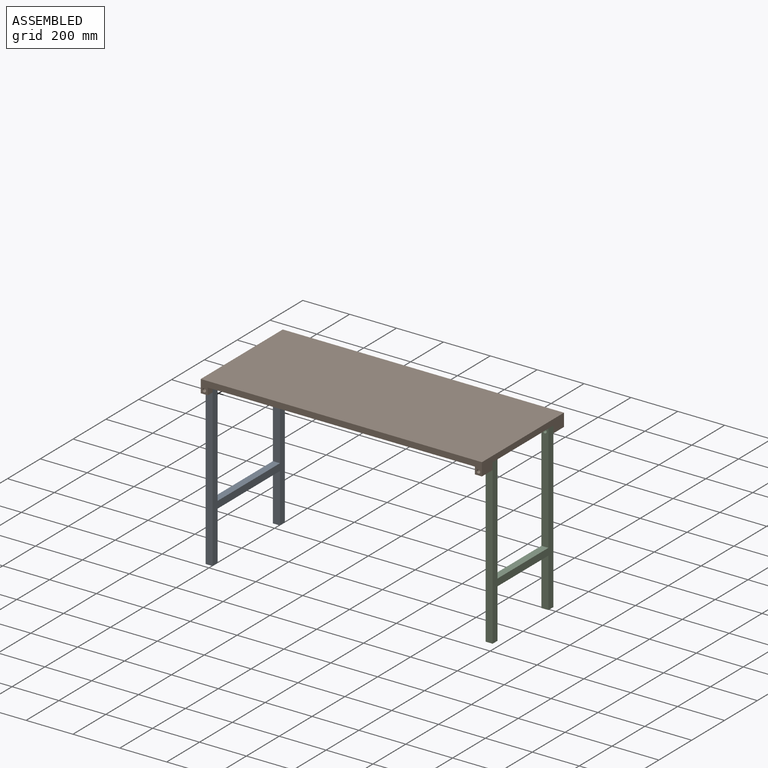
[diagram: assembled view]
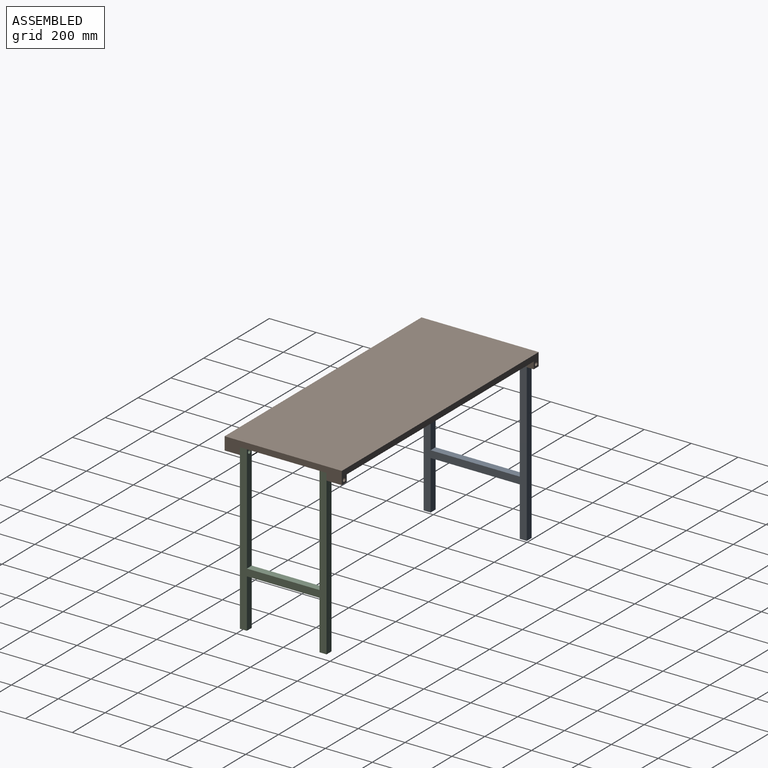
[diagram: assembled view, second angle]
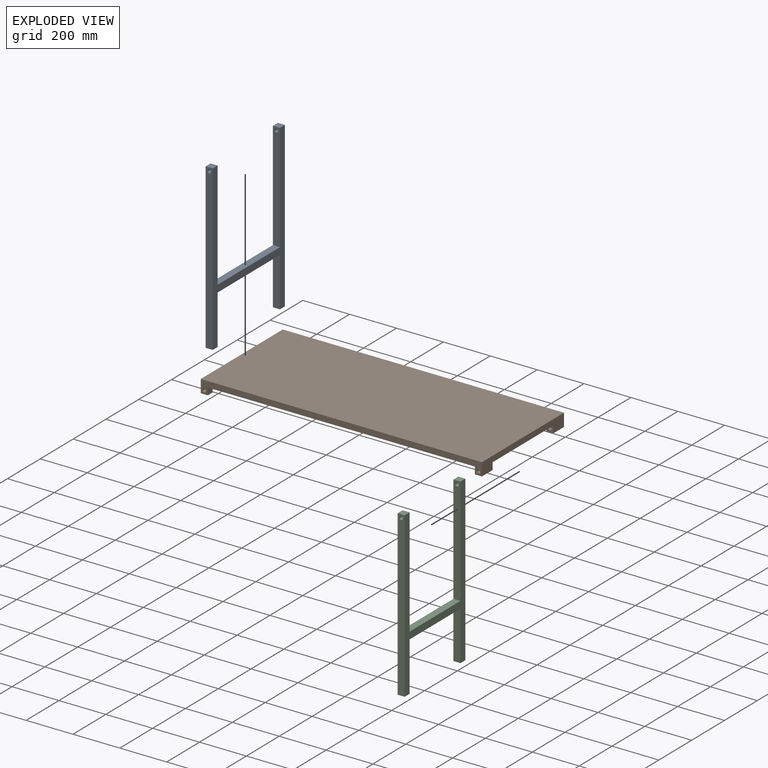
[diagram: exploded view]
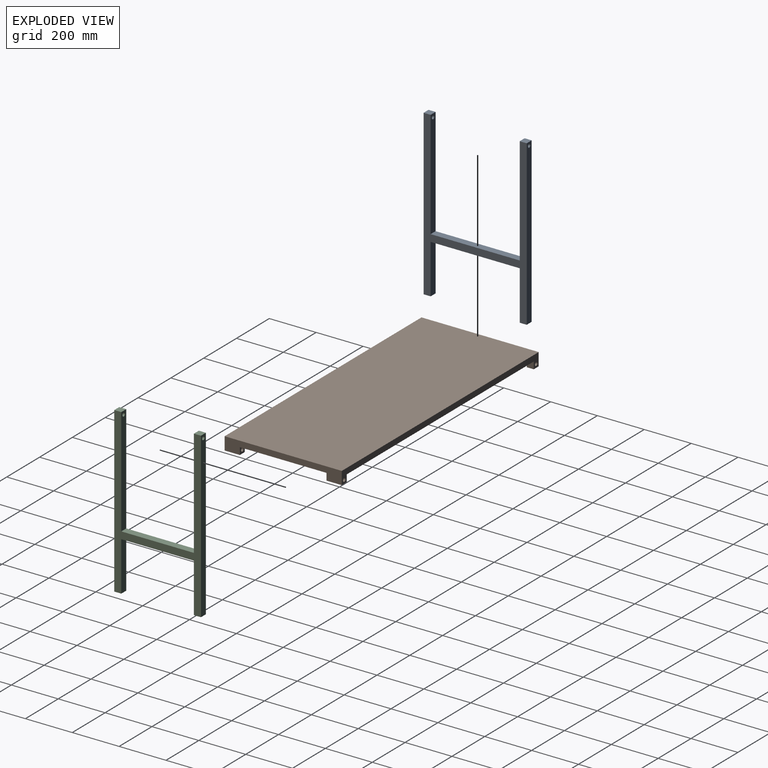
[diagram: exploded view, second angle]
ASSEMBLY  parts=3 mates=2
PART A: 16 faces, bbox 30x440x700 mm
  f0: plane 460x30mm, normal (0,1,0), area 13623.3mm2, adj f1,f11,f12,f13,f15
  f1: plane 30x30mm, normal (0,0,1), area 900mm2, adj f0,f2,f12,f13
  f2: plane 700x30mm, normal (0,-1,0), area 20823.3mm2, adj f1,f3,f12,f13,f15
  f3: plane 30x30mm, normal (0,0,-1), area 900mm2, adj f2,f4,f12,f13
  f4: plane 210x30mm, normal (0,1,0), area 6300mm2, adj f3,f5,f12,f13
  f5: plane 380x30mm, normal (0,0,-1), area 11400mm2, adj f4,f6,f12,f13
  f6: plane 210x30mm, normal (0,-1,0), area 6300mm2, adj f5,f7,f12,f13
  f7: plane 30x30mm, normal (0,0,-1), area 900mm2, adj f6,f8,f12,f13
  f8: plane 700x30mm, normal (0,1,0), area 20823.3mm2, adj f7,f9,f12,f13,f14
  f9: plane 30x30mm, normal (0,0,1), area 900mm2, adj f8,f10,f12,f13
  f10: plane 460x30mm, normal (0,-1,0), area 13623.3mm2, adj f9,f11,f12,f13,f14
  f11: plane 380x30mm, normal (0,0,1), area 11400mm2, adj f0,f10,f12,f13
  f12: plane 700x440mm, normal (1,0,0), area 53400mm2, adj f0,f1,f2,f3,f4,f5,f6,f7
  f13: plane 700x440mm, normal (-1,0,0), area 53400mm2, adj f0,f1,f2,f3,f4,f5,f6,f7
  f14: cylinder r=7.5mm len=30mm, axis (0,-1,0), area 1413.7mm2, adj f8,f10
  f15: cylinder r=7.5mm len=30mm, axis (0,-1,0), area 1413.7mm2, adj f0,f2
PART B: 22 faces, bbox 1200x500x55 mm
  f0: plane 1200x55mm, normal (0,-1,0), area 31446.6mm2, adj f2,f3,f4,f5,f7,f8,f13,f14
  f1: plane 1200x55mm, normal (0,1,0), area 31446.6mm2, adj f2,f3,f4,f5,f10,f11,f16,f17
  f2: plane 500x55mm, normal (1,0,0), area 16400mm2, adj f0,f1,f4,f5,f12,f14,f15,f17
  f3: plane 500x55mm, normal (-1,0,0), area 14300mm2, adj f0,f1,f4,f5,f6,f8,f9,f11
  f4: plane 1200x500mm, normal (0,0,1), area 600000mm2, adj f0,f1,f2,f3
  f5: plane 1200x500mm, normal (0,0,-1), area 594300mm2, adj f0,f1,f2,f3,f6,f7,f9,f10
  f6: plane 30x30mm, normal (0,1,0), area 723.3mm2, adj f3,f5,f7,f8,f21
  f7: plane 30x30mm, normal (1,0,0), area 900mm2, adj f0,f5,f6,f8
  f8: plane 30x30mm, normal (0,0,-1), area 900mm2, adj f0,f3,f6,f7
  f9: plane 30x30mm, normal (0,-1,0), area 723.3mm2, adj f3,f5,f10,f11,f20
  f10: plane 30x30mm, normal (1,0,0), area 900mm2, adj f1,f5,f9,f11
  f11: plane 30x30mm, normal (0,0,-1), area 900mm2, adj f1,f3,f9,f10
  f12: plane 30x30mm, normal (0,1,0), area 723.3mm2, adj f2,f5,f13,f14,f19
  f13: plane 65x30mm, normal (-1,0,0), area 1950mm2, adj f0,f5,f12,f14
  f14: plane 65x30mm, normal (0,0,-1), area 1950mm2, adj f0,f2,f12,f13
  f15: plane 30x30mm, normal (0,-1,0), area 723.3mm2, adj f2,f5,f16,f17,f18
  f16: plane 65x30mm, normal (-1,0,0), area 1950mm2, adj f1,f5,f15,f17
  f17: plane 65x30mm, normal (0,0,-1), area 1950mm2, adj f1,f2,f15,f16
  f18: cylinder r=7.5mm len=65mm, axis (0,1,0), area 3063.1mm2, adj f1,f15
  f19: cylinder r=7.5mm len=65mm, axis (0,1,0), area 3063.1mm2, adj f0,f12
  f20: cylinder r=7.5mm len=30mm, axis (0,1,0), area 1413.7mm2, adj f1,f9
  f21: cylinder r=7.5mm len=30mm, axis (0,1,0), area 1413.7mm2, adj f0,f6
PART C: 16 faces, bbox 30x370x700 mm
  f0: plane 460x30mm, normal (0,-1,0), area 13623.3mm2, adj f1,f11,f12,f13,f14
  f1: plane 310x30mm, normal (0,0,1), area 9300mm2, adj f0,f2,f12,f13
  f2: plane 460x30mm, normal (0,1,0), area 13623.3mm2, adj f1,f3,f12,f13,f15
  f3: plane 30x30mm, normal (0,0,1), area 900mm2, adj f2,f4,f12,f13
  f4: plane 700x30mm, normal (0,-1,0), area 20823.3mm2, adj f3,f5,f12,f13,f15
  f5: plane 30x30mm, normal (0,0,-1), area 900mm2, adj f4,f6,f12,f13
  f6: plane 210x30mm, normal (0,1,0), area 6300mm2, adj f5,f7,f12,f13
  f7: plane 310x30mm, normal (0,0,-1), area 9300mm2, adj f6,f8,f12,f13
  f8: plane 210x30mm, normal (0,-1,0), area 6300mm2, adj f7,f9,f12,f13
  f9: plane 30x30mm, normal (0,0,-1), area 900mm2, adj f8,f10,f12,f13
  f10: plane 700x30mm, normal (0,1,0), area 20823.3mm2, adj f9,f11,f12,f13,f14
  f11: plane 30x30mm, normal (0,0,1), area 900mm2, adj f0,f10,f12,f13
  f12: plane 700x370mm, normal (-1,0,0), area 51300mm2, adj f0,f1,f2,f3,f4,f5,f6,f7
  f13: plane 700x370mm, normal (1,0,0), area 51300mm2, adj f0,f1,f2,f3,f4,f5,f6,f7
  f14: cylinder r=7.5mm len=30mm, axis (0,-1,0), area 1413.7mm2, adj f0,f10
  f15: cylinder r=7.5mm len=30mm, axis (0,-1,0), area 1413.7mm2, adj f2,f4
PLACE A rot(axis=(0,1,-0.06),0deg) t=(100,0,0)mm
PLACE B at identity fixed
PLACE C t=(-100,0,0)mm
MATE revolute C.f14 <-> B.f18  axis (0,-1,0) through (585,-185,-15)mm
MATE revolute A.f14 <-> B.f20  axis (0,-1,0) through (-585,-220,-15)mm
